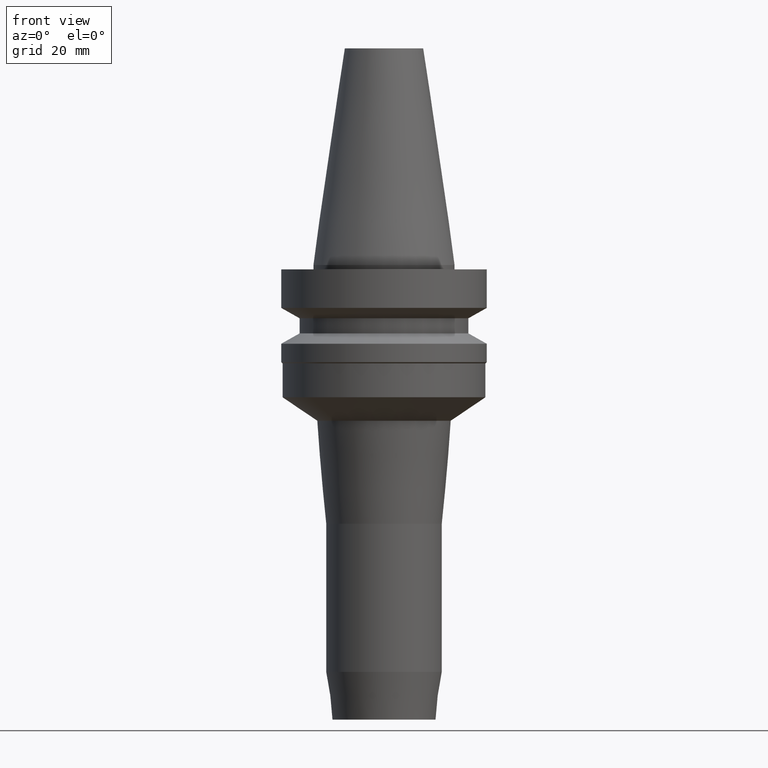
[diagram: clean part render]
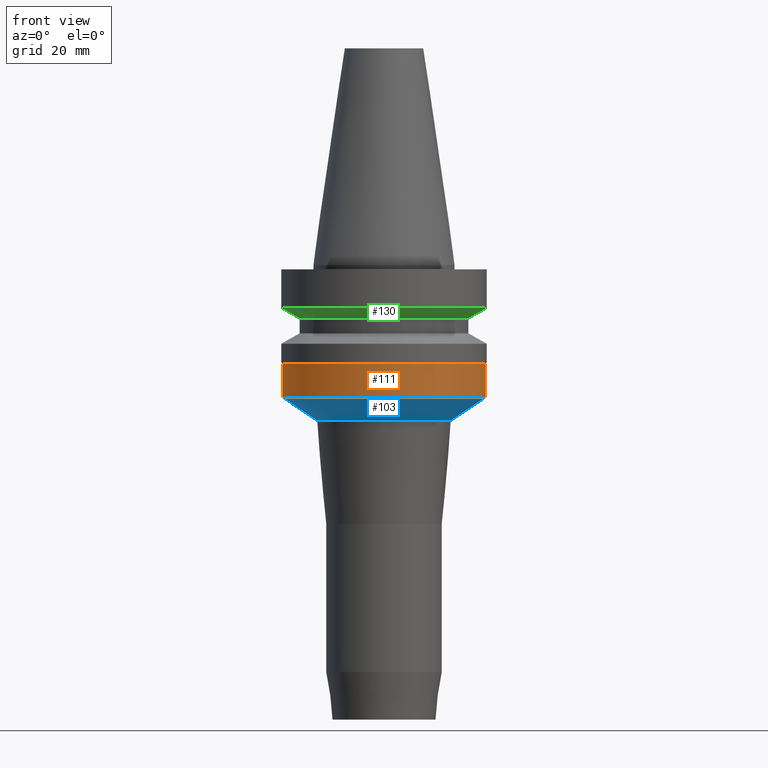
[diagram: same view with three faces highlighted in distinct colors, each labeled with its STEP entity id]
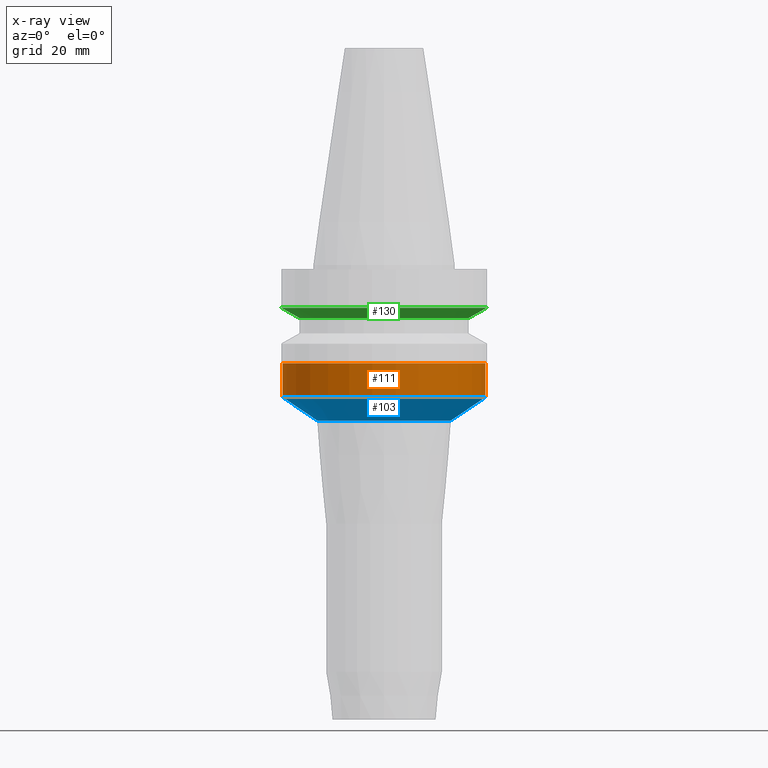
[diagram: x-ray of the same camera — body ghosted, the three highlighted faces saturated]
A machine part, front view with three faces highlighted in distinct colors.
The next image is the same camera in x-ray (body ghosted, the three faces saturated) — at least one of them is partly hidden behind the body in this view.
Their STEP definitions:

[orange] entity #111 — the highlighted cylindrical surface (bore or boss wall) has radius 22.7 mm, axis along (0, 0, -1).
#58=EDGE_CURVE('Unnamed[1]',#156,#156,#157,.T.);
#105=EDGE_CURVE('Unnamed[1]',#228,#228,#229,.T.);
#111=ADVANCED_FACE('Unnamed[1]',(#237,#238),#239,.T.);
#156=VERTEX_POINT('',#290);
#157=CIRCLE('',#291,22.7000000162305);
#228=VERTEX_POINT('',#380);
#229=CIRCLE('',#381,22.6999999198782);
#237=FACE_BOUND('',#391,.T.);
#238=FACE_BOUND('',#392,.T.);
#239=CYLINDRICAL_SURFACE('',#393,22.6999999680544);
#290=CARTESIAN_POINT('',(1.81029905155659E-015,22.7000000162305,-29.5644271118332));
#291=AXIS2_PLACEMENT_3D('',#445,#446,#447);
#380=CARTESIAN_POINT('',(1.34711148396834E-015,22.6999999198783,-22.0000000801252));
#381=AXIS2_PLACEMENT_3D('',#523,#524,#525);
#391=EDGE_LOOP('',(#533));
#392=EDGE_LOOP('',(#534));
#393=AXIS2_PLACEMENT_3D('',#535,#536,#537);
#445=CARTESIAN_POINT('',(1.81029905155659E-015,3.62059810311318E-015,-29.5644271118332));
#446=DIRECTION('',(6.12323399573676E-017,1.22464679914735E-016,-1.0));
#447=DIRECTION('',(-1.23259516440783E-032,1.0,1.22464679914735E-016));
#523=CARTESIAN_POINT('',(1.34711148396834E-015,2.69422296793668E-015,-22.0000000801252));
#524=DIRECTION('',(6.12323399573677E-017,1.22464679914735E-016,-1.0));
#525=DIRECTION('',(-1.23259516440783E-032,1.0,1.22464679914735E-016));
#533=ORIENTED_EDGE('',*,*,#58,.F.);
#534=ORIENTED_EDGE('',*,*,#105,.T.);
#535=CARTESIAN_POINT('',(1.57870526776247E-015,3.15741053552493E-015,-25.7822135959792));
#536=DIRECTION('',(6.12323399573677E-017,1.22464679914735E-016,-1.0));
#537=DIRECTION('',(-1.23259516440783E-032,1.0,1.22464679914735E-016));

[blue] entity #103 — the highlighted conical surface has half-angle 55.72 deg.
#58=EDGE_CURVE('Unnamed[1]',#156,#156,#157,.T.);
#103=ADVANCED_FACE('Unnamed[1]',(#224,#225),#226,.T.);
#122=EDGE_CURVE('Unnamed[1]',#256,#256,#257,.T.);
#156=VERTEX_POINT('',#290);
#157=CIRCLE('',#291,22.7000000162305);
#224=FACE_BOUND('',#375,.T.);
#225=FACE_BOUND('',#376,.T.);
#226=CONICAL_SURFACE('',#377,18.8569243042276,0.972499977363279);
#256=VERTEX_POINT('',#414);
#257=CIRCLE('',#415,15.0138485922248);
#290=CARTESIAN_POINT('',(1.81029905155659E-015,22.7000000162305,-29.5644271118332));
#291=AXIS2_PLACEMENT_3D('',#445,#446,#447);
#375=EDGE_LOOP('',(#518));
#376=EDGE_LOOP('',(#519));
#377=AXIS2_PLACEMENT_3D('',#520,#521,#522);
#414=CARTESIAN_POINT('',(2.13110618908541E-015,15.0138485922248,-34.8036052610298));
#415=AXIS2_PLACEMENT_3D('',#556,#557,#558);
#445=CARTESIAN_POINT('',(1.81029905155659E-015,3.62059810311318E-015,-29.5644271118332));
#446=DIRECTION('',(6.12323399573676E-017,1.22464679914735E-016,-1.0));
#447=DIRECTION('',(-1.23259516440783E-032,1.0,1.22464679914735E-016));
#518=ORIENTED_EDGE('',*,*,#122,.F.);
#519=ORIENTED_EDGE('',*,*,#58,.T.);
#520=CARTESIAN_POINT('',(1.970702620321E-015,3.94140524064199E-015,-32.1840161864315));
#521=DIRECTION('',(-6.12323399573677E-017,-1.22464679914735E-016,1.0));
#522=DIRECTION('',(-1.23259516440783E-032,1.0,1.22464679914735E-016));
#556=CARTESIAN_POINT('',(2.13110618908541E-015,4.26221237817081E-015,-34.8036052610298));
#557=DIRECTION('',(6.12323399573677E-017,1.22464679914735E-016,-1.0));
#558=DIRECTION('',(-1.23259516440783E-032,1.0,1.22464679914735E-016));

[green] entity #130 — the highlighted conical surface has half-angle 60 deg.
#65=EDGE_CURVE('Unnamed[1]',#167,#167,#168,.T.);
#84=EDGE_CURVE('Unnamed[1]',#197,#197,#198,.T.);
#130=ADVANCED_FACE('Unnamed[1]',(#268,#269),#270,.T.);
#167=VERTEX_POINT('',#304);
#168=CIRCLE('',#305,23.0);
#197=VERTEX_POINT('',#342);
#198=CIRCLE('',#343,19.0);
#268=FACE_BOUND('',#429,.T.);
#269=FACE_BOUND('',#430,.T.);
#270=CONICAL_SURFACE('',#431,21.0,1.04719755058881);
#304=CARTESIAN_POINT('',(5.87830463590729E-016,23.0,-9.59999999999999));
#305=AXIS2_PLACEMENT_3D('',#457,#458,#459);
#342=CARTESIAN_POINT('',(7.29240495619202E-016,19.0,-11.90940108));
#343=AXIS2_PLACEMENT_3D('',#490,#491,#492);
#429=EDGE_LOOP('',(#569));
#430=EDGE_LOOP('',(#570));
#431=AXIS2_PLACEMENT_3D('',#571,#572,#573);
#457=CARTESIAN_POINT('',(5.87830463590729E-016,1.17566092718146E-015,-9.59999999999999));
#458=DIRECTION('',(6.12323399573677E-017,1.22464679914735E-016,-1.0));
#459=DIRECTION('',(-1.23259516440783E-032,1.0,1.22464679914735E-016));
#490=CARTESIAN_POINT('',(7.29240495619202E-016,1.4584809912384E-015,-11.90940108));
#491=DIRECTION('',(6.12323399573677E-017,1.22464679914735E-016,-1.0));
#492=DIRECTION('',(-1.23259516440783E-032,1.0,1.22464679914735E-016));
#569=ORIENTED_EDGE('',*,*,#84,.F.);
#570=ORIENTED_EDGE('',*,*,#65,.T.);
#571=CARTESIAN_POINT('',(6.58535479604966E-016,1.31707095920993E-015,-10.75470054));
#572=DIRECTION('',(-6.12323399573677E-017,-1.22464679914735E-016,1.0));
#573=DIRECTION('',(-1.23259516440783E-032,1.0,1.22464679914735E-016));